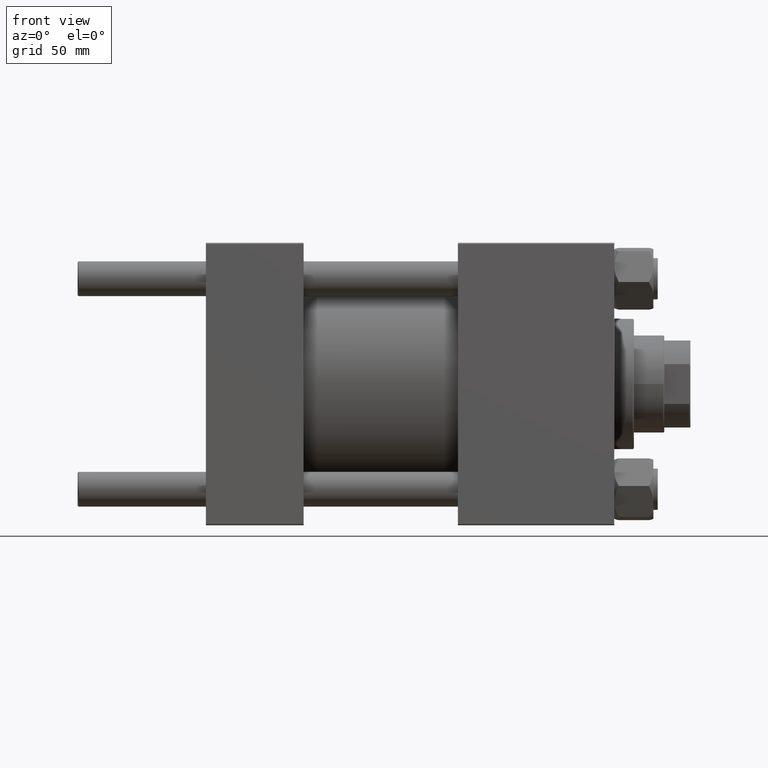
[diagram: clean part render]
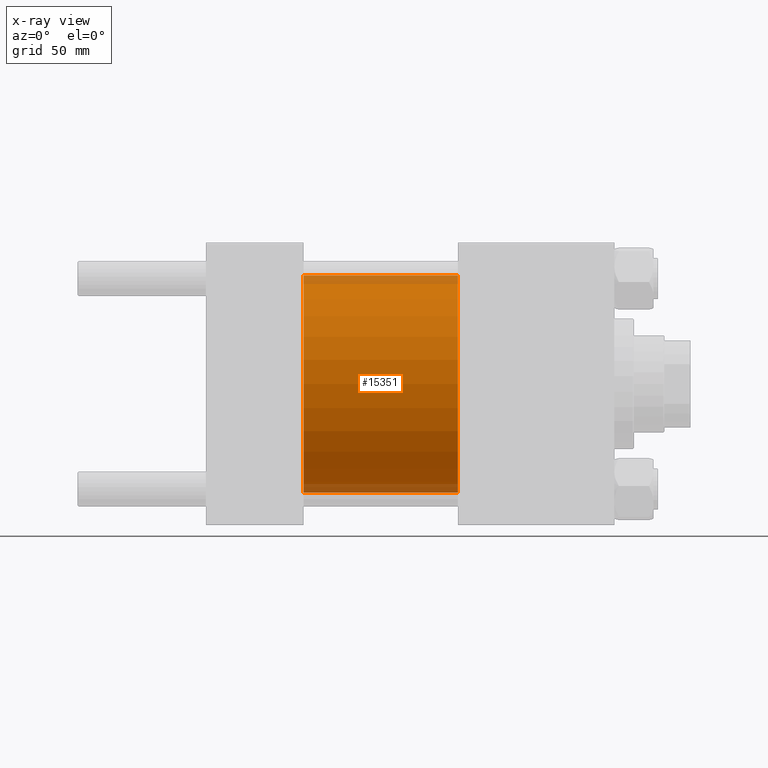
[diagram: x-ray — body ghosted, one internal face saturated and labeled with its STEP entity id]
A machine part, front view, then the same camera in x-ray: the body is ghosted and one INTERNAL B-rep face — a face not visible from any outside direction — is saturated and labeled: STEP entity #15351.
In plain terms, the highlighted cylindrical surface (partial cylindrical patch) has radius 50 mm, axis along (-1, -0, -0).
Its self-contained STEP definition (entity closure, byte-faithful):
#1601 = CARTESIAN_POINT ( 'NONE',  ( 115.9999999999999858, 6.123233995736766085E-15, -50.00000000000000000 ) ) ;
#1792 = CARTESIAN_POINT ( 'NONE',  ( 115.9999999999999858, 6.123233995736766085E-15, -50.00000000000000000 ) ) ;
#2136 = DIRECTION ( 'NONE',  ( -1.000000000000000000, -0.000000000000000000, -0.000000000000000000 ) ) ;
#5193 = CARTESIAN_POINT ( 'NONE',  ( 45.00000000000000000, 0.000000000000000000, 50.00000000000000000 ) ) ;
#6022 = EDGE_CURVE ( 'NONE', #8514, #46102, #48893, .T. ) ;
#6808 = ORIENTED_EDGE ( 'NONE', *, *, #48677, .T. ) ;
#8514 = VERTEX_POINT ( 'NONE', #5193 ) ;
#8743 = DIRECTION ( 'NONE',  ( 0.000000000000000000, 0.000000000000000000, -1.000000000000000000 ) ) ;
#9065 = CARTESIAN_POINT ( 'NONE',  ( 45.00000000000000000, 0.000000000000000000, 0.000000000000000000 ) ) ;
#9156 = ORIENTED_EDGE ( 'NONE', *, *, #6022, .F. ) ;
#10997 = CARTESIAN_POINT ( 'NONE',  ( 115.9999999999999858, 0.000000000000000000, 0.000000000000000000 ) ) ;
#15351 = ADVANCED_FACE ( 'NONE', ( #48999 ), #49240, .F. ) ;
#17177 = CARTESIAN_POINT ( 'NONE',  ( 45.00000000000000000, 6.123233995736766085E-15, -50.00000000000000000 ) ) ;
#19357 = DIRECTION ( 'NONE',  ( -1.000000000000000000, -0.000000000000000000, -0.000000000000000000 ) ) ;
#20001 = VECTOR ( 'NONE', #44824, 1000.000000000000000 ) ;
#20464 = CARTESIAN_POINT ( 'NONE',  ( 115.9999999999999858, 0.000000000000000000, 0.000000000000000000 ) ) ;
#20976 = CARTESIAN_POINT ( 'NONE',  ( 115.9999999999999858, 0.000000000000000000, 50.00000000000000000 ) ) ;
#22024 = VERTEX_POINT ( 'NONE', #1601 ) ;
#22186 = AXIS2_PLACEMENT_3D ( 'NONE', #10997, #2136, #41834 ) ;
#22320 = EDGE_CURVE ( 'NONE', #22024, #46102, #32356, .T. ) ;
#23933 = ORIENTED_EDGE ( 'NONE', *, *, #47286, .F. ) ;
#24501 = AXIS2_PLACEMENT_3D ( 'NONE', #9065, #43705, #40145 ) ;
#24787 = DIRECTION ( 'NONE',  ( 1.000000000000000000, 0.000000000000000000, 0.000000000000000000 ) ) ;
#27611 = EDGE_LOOP ( 'NONE', ( #6808, #35759, #9156, #23933 ) ) ;
#30179 = VERTEX_POINT ( 'NONE', #20976 ) ;
#30816 = LINE ( 'NONE', #42529, #35675 ) ;
#32356 = LINE ( 'NONE', #1792, #20001 ) ;
#32459 = CIRCLE ( 'NONE', #48753, 50.00000000000000000 ) ;
#35675 = VECTOR ( 'NONE', #19357, 1000.000000000000000 ) ;
#35759 = ORIENTED_EDGE ( 'NONE', *, *, #22320, .T. ) ;
#40145 = DIRECTION ( 'NONE',  ( 0.000000000000000000, 0.000000000000000000, -1.000000000000000000 ) ) ;
#41834 = DIRECTION ( 'NONE',  ( 0.000000000000000000, 0.000000000000000000, 1.000000000000000000 ) ) ;
#42529 = CARTESIAN_POINT ( 'NONE',  ( 115.9999999999999858, 0.000000000000000000, 50.00000000000000000 ) ) ;
#43705 = DIRECTION ( 'NONE',  ( 1.000000000000000000, 0.000000000000000000, 0.000000000000000000 ) ) ;
#44824 = DIRECTION ( 'NONE',  ( -1.000000000000000000, -0.000000000000000000, -0.000000000000000000 ) ) ;
#46102 = VERTEX_POINT ( 'NONE', #17177 ) ;
#47286 = EDGE_CURVE ( 'NONE', #30179, #8514, #30816, .T. ) ;
#48677 = EDGE_CURVE ( 'NONE', #30179, #22024, #32459, .T. ) ;
#48753 = AXIS2_PLACEMENT_3D ( 'NONE', #20464, #24787, #8743 ) ;
#48893 = CIRCLE ( 'NONE', #24501, 50.00000000000000000 ) ;
#48999 = FACE_OUTER_BOUND ( 'NONE', #27611, .T. ) ;
#49240 = CYLINDRICAL_SURFACE ( 'NONE', #22186, 50.00000000000000000 ) ;